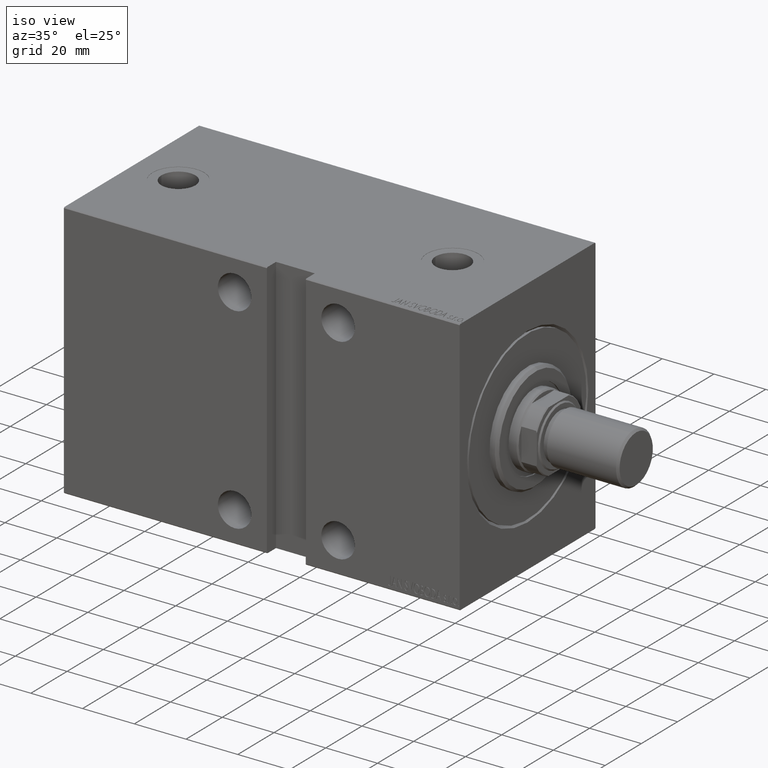
[diagram: clean part render]
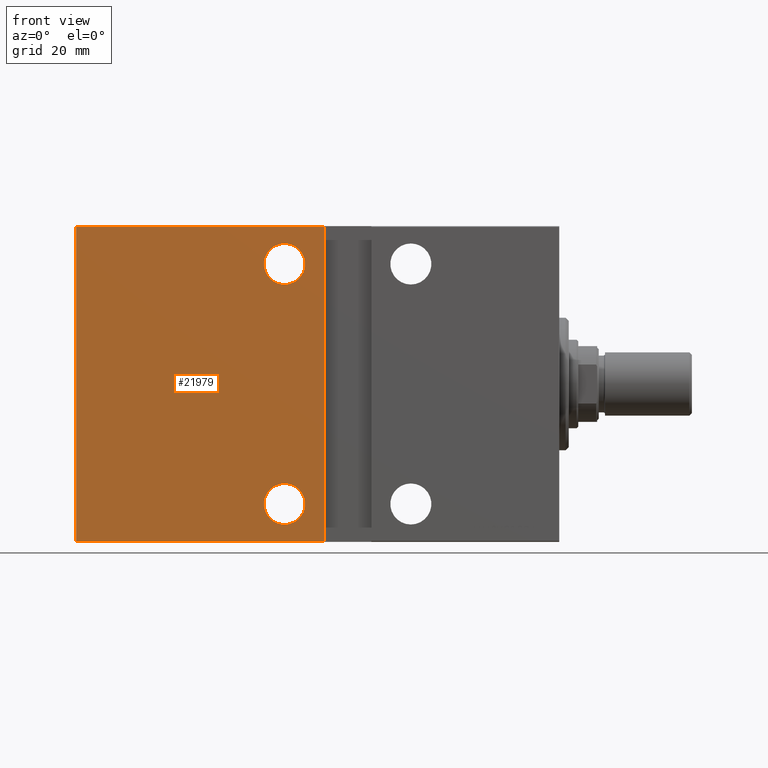
[diagram: tour spotlight — one face highlighted and labeled with its STEP entity id]
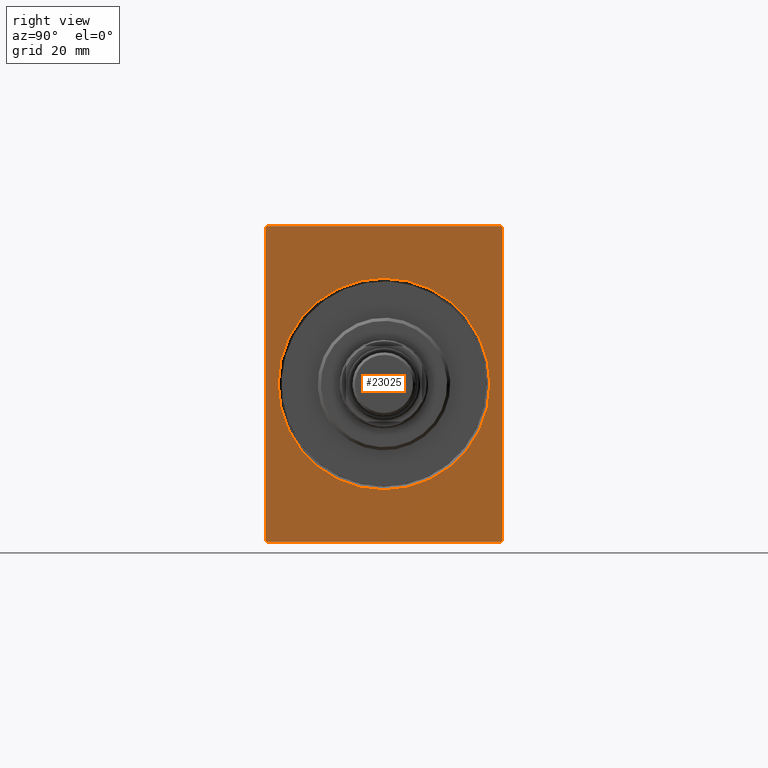
[diagram: tour spotlight — one face highlighted and labeled with its STEP entity id]
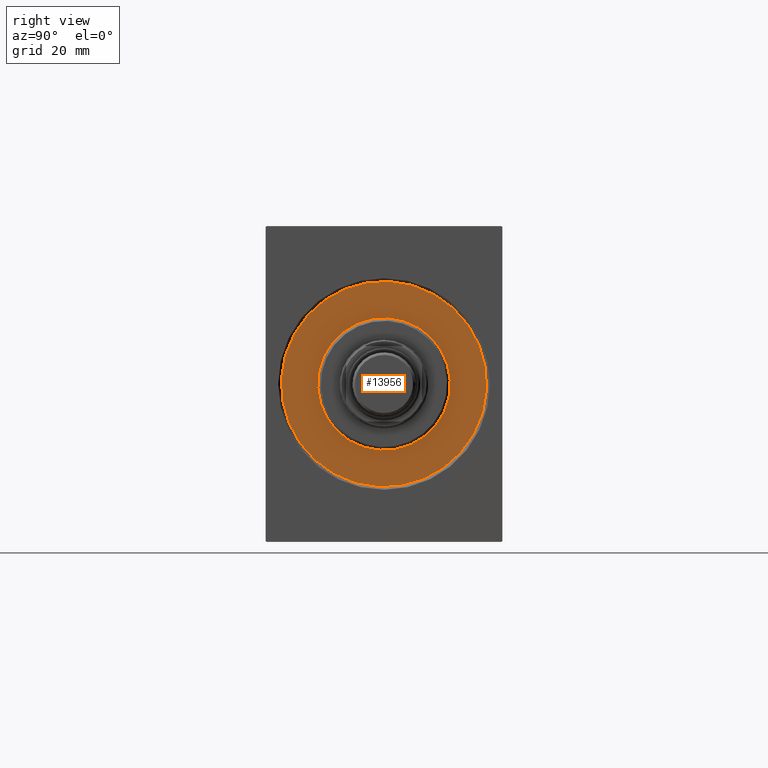
[diagram: tour spotlight — one face highlighted and labeled with its STEP entity id]
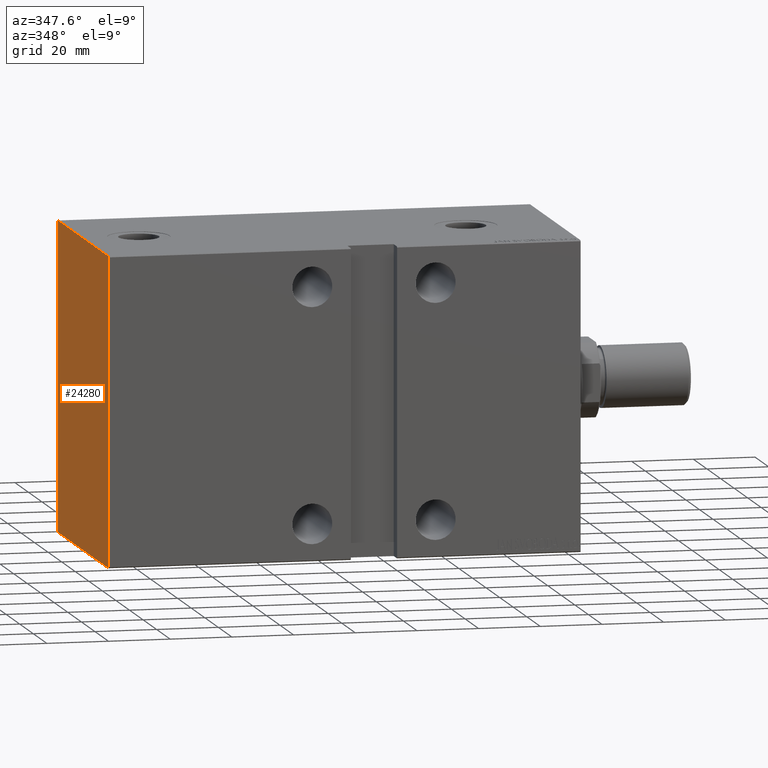
[diagram: tour spotlight — one face highlighted and labeled with its STEP entity id]
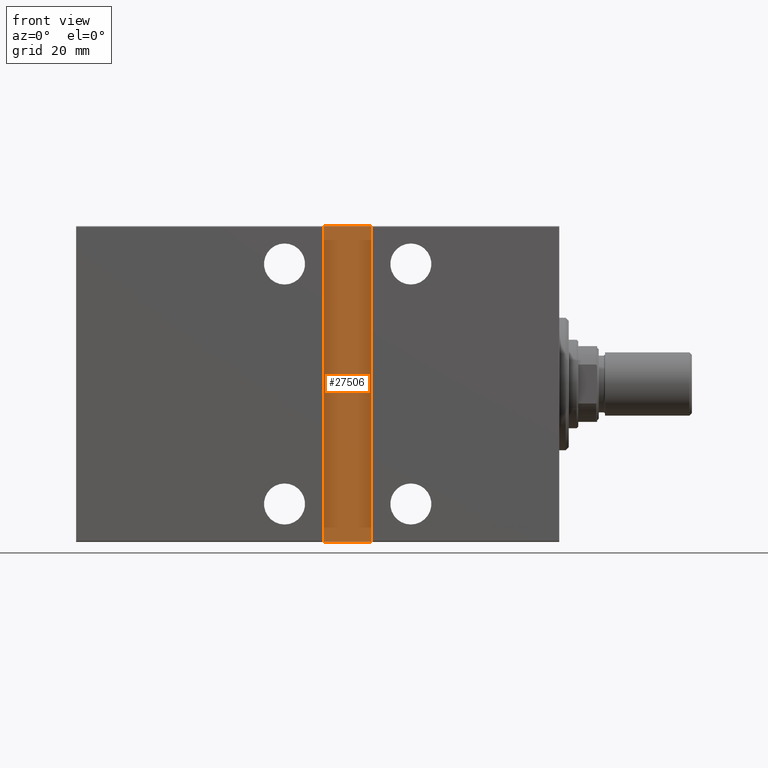
[diagram: tour spotlight — one face highlighted and labeled with its STEP entity id]
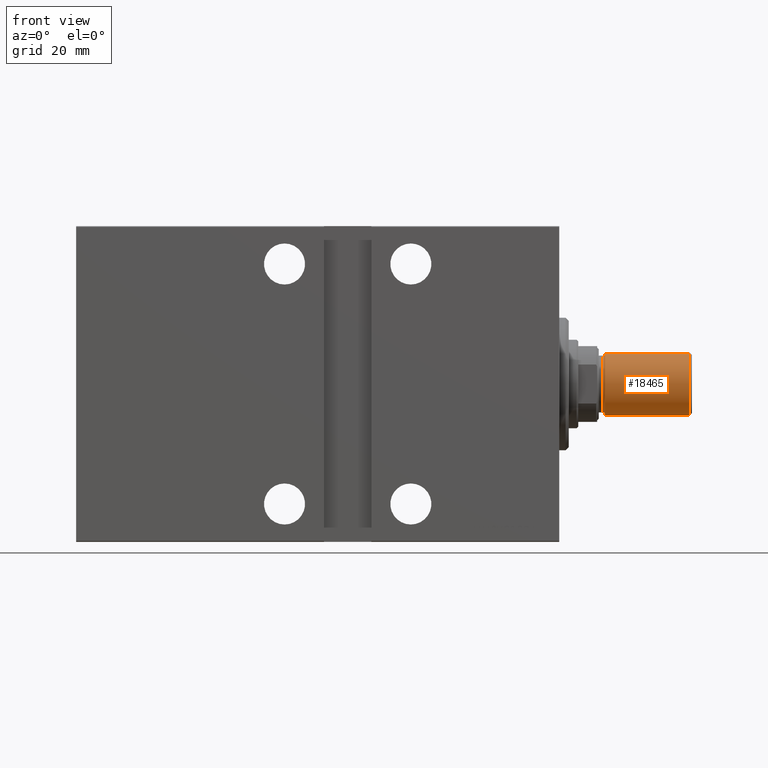
[diagram: tour spotlight — one face highlighted and labeled with its STEP entity id]
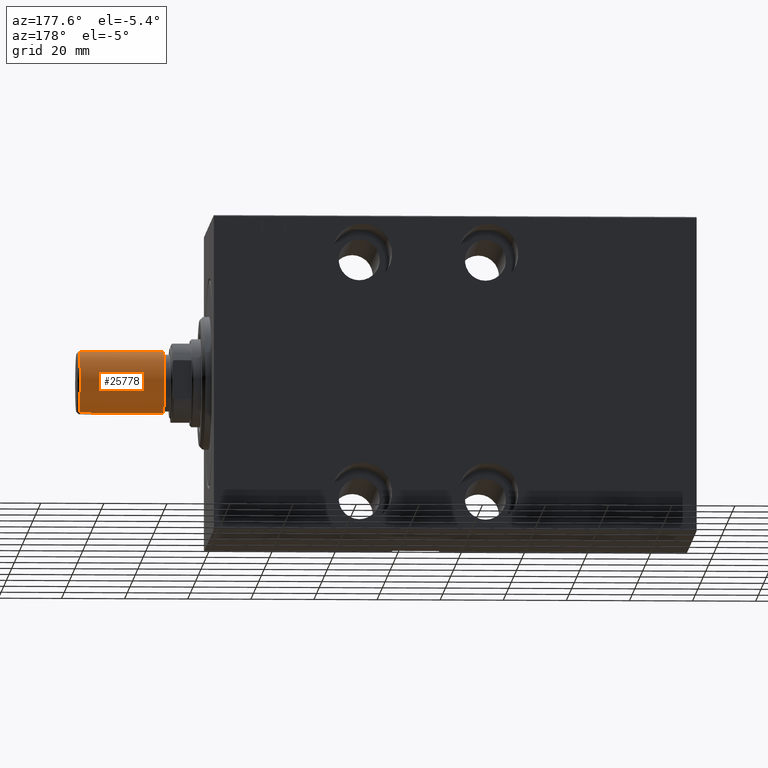
[diagram: tour spotlight — one face highlighted and labeled with its STEP entity id]
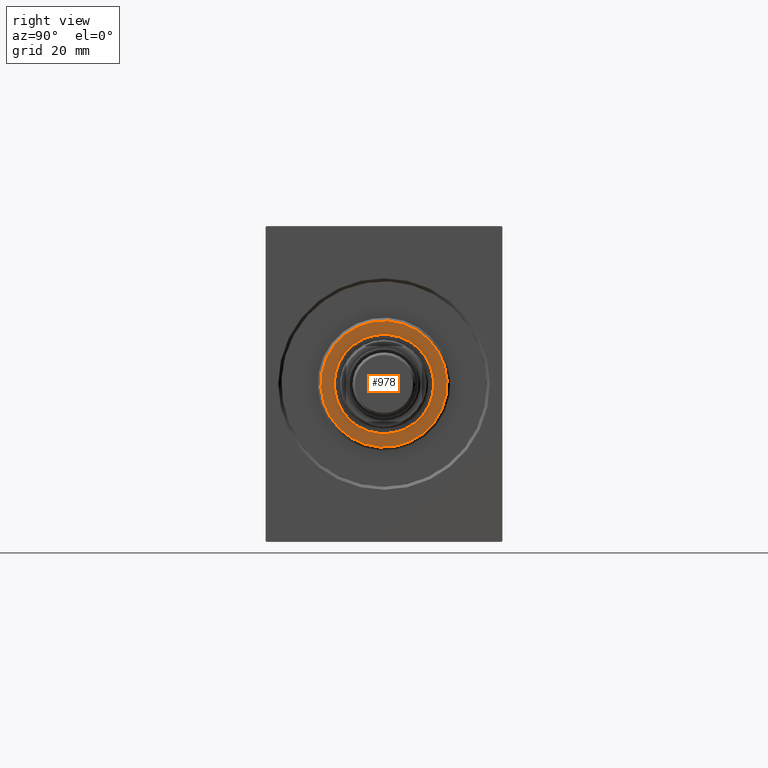
[diagram: tour spotlight — one face highlighted and labeled with its STEP entity id]
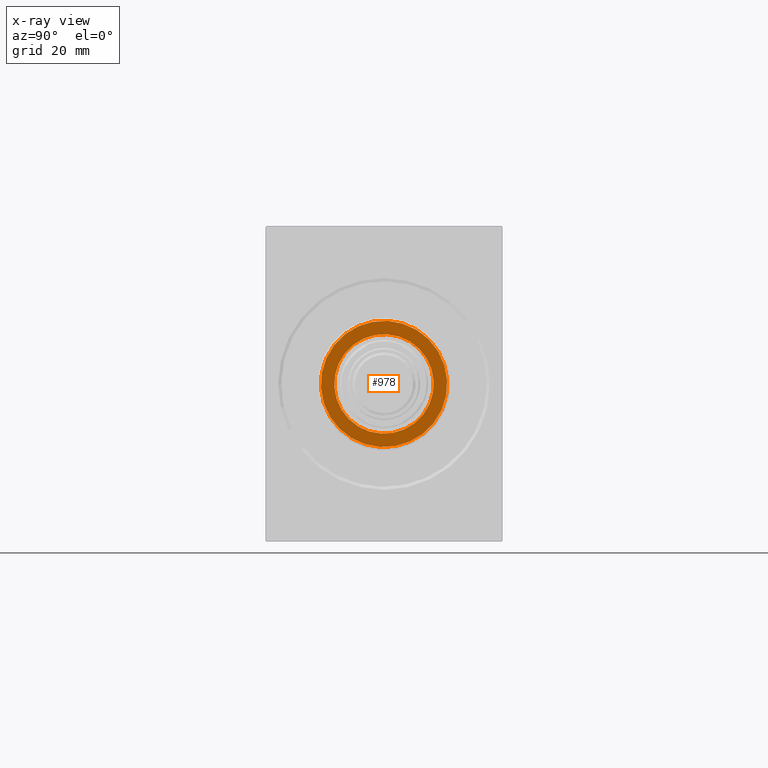
[diagram: x-ray of the same camera — body ghosted, this tour face saturated]
A machine part: a face-by-face anatomy tour. The part has 908 B-rep faces; the first image is the clean iso view, then the 8 largest visible faces are spotlighted one at a time (largest first), each with its STEP entity span.

Face 1 — front view, entity #21979. In plain terms, the highlighted planar face has unit normal (-0, 1, -0).
Definition (entity closure, byte-faithful):
#240 = EDGE_LOOP ( 'NONE', ( #21825, #43756 ) ) ;
#302 = EDGE_LOOP ( 'NONE', ( #7756, #40210, #27825, #15398 ) ) ;
#422 = CIRCLE ( 'NONE', #6183, 6.500000000000005329 ) ;
#1182 = DIRECTION ( 'NONE',  ( 0.000000000000000000, 1.000000000000000000, 0.000000000000000000 ) ) ;
#2494 = CARTESIAN_POINT ( 'NONE',  ( 153.0000000000000000, 37.50000000000002132, -49.69999999999998153 ) ) ;
#2772 = CARTESIAN_POINT ( 'NONE',  ( 87.00000000000000000, 37.50000000000004263, -44.50000000000000000 ) ) ;
#3158 = CARTESIAN_POINT ( 'NONE',  ( 87.00000000000000000, 37.50000000000004263, 38.00000000000000711 ) ) ;
#4649 = CARTESIAN_POINT ( 'NONE',  ( 153.0000000000000000, 37.50000000000002132, -49.69999999999998153 ) ) ;
#5159 = VECTOR ( 'NONE', #18539, 1000.000000000000000 ) ;
#5328 = CARTESIAN_POINT ( 'NONE',  ( 153.0000000000000000, 37.50000000000000711, 49.70000000000003837 ) ) ;
#6081 = AXIS2_PLACEMENT_3D ( 'NONE', #11276, #1182, #7476 ) ;
#6183 = AXIS2_PLACEMENT_3D ( 'NONE', #3158, #33437, #27146 ) ;
#6376 = EDGE_CURVE ( 'NONE', #25930, #39518, #28260, .T. ) ;
#7476 = DIRECTION ( 'NONE',  ( 0.000000000000000000, 0.000000000000000000, 1.000000000000000000 ) ) ;
#7526 = PLANE ( 'NONE',  #38827 ) ;
#7756 = ORIENTED_EDGE ( 'NONE', *, *, #20656, .F. ) ;
#8010 = LINE ( 'NONE', #4649, #18794 ) ;
#9031 = CARTESIAN_POINT ( 'NONE',  ( 87.00000000000000000, 37.50000000000004263, 31.50000000000000000 ) ) ;
#9766 = DIRECTION ( 'NONE',  ( 0.000000000000000000, 1.000000000000000000, 0.000000000000000000 ) ) ;
#10014 = CARTESIAN_POINT ( 'NONE',  ( 153.0000000000000000, 37.50000000000000711, 49.70000000000003837 ) ) ;
#10408 = CARTESIAN_POINT ( 'NONE',  ( 87.00000000000000000, 37.50000000000004263, -37.99999999999999289 ) ) ;
#10442 = DIRECTION ( 'NONE',  ( 0.000000000000000000, -1.000000000000000000, -1.387778780781445676E-16 ) ) ;
#11208 = VERTEX_POINT ( 'NONE', #41149 ) ;
#11263 = CIRCLE ( 'NONE', #27068, 6.500000000000005329 ) ;
#11276 = CARTESIAN_POINT ( 'NONE',  ( 87.00000000000000000, 37.50000000000004263, 38.00000000000000711 ) ) ;
#11642 = VECTOR ( 'NONE', #35385, 1000.000000000000000 ) ;
#14111 = LINE ( 'NONE', #38531, #11642 ) ;
#14250 = FACE_OUTER_BOUND ( 'NONE', #302, .T. ) ;
#15398 = ORIENTED_EDGE ( 'NONE', *, *, #38898, .T. ) ;
#17501 = ORIENTED_EDGE ( 'NONE', *, *, #42956, .F. ) ;
#18539 = DIRECTION ( 'NONE',  ( 0.000000000000000000, -1.387778780781445676E-16, 1.000000000000000000 ) ) ;
#18794 = VECTOR ( 'NONE', #31998, 1000.000000000000000 ) ;
#19238 = CARTESIAN_POINT ( 'NONE',  ( 87.00000000000000000, 37.50000000000004263, -37.99999999999999289 ) ) ;
#20004 = VERTEX_POINT ( 'NONE', #34371 ) ;
#20081 = CARTESIAN_POINT ( 'NONE',  ( 87.00000000000000000, 37.50000000000004263, 44.50000000000001421 ) ) ;
#20656 = EDGE_CURVE ( 'NONE', #26322, #41788, #39170, .T. ) ;
#21199 = DIRECTION ( 'NONE',  ( 0.000000000000000000, 1.387778780781445676E-16, -1.000000000000000000 ) ) ;
#21749 = EDGE_CURVE ( 'NONE', #26322, #11208, #8010, .T. ) ;
#21825 = ORIENTED_EDGE ( 'NONE', *, *, #6376, .F. ) ;
#21979 = ADVANCED_FACE ( 'NONE', ( #38229, #31502, #14250 ), #7526, .F. ) ;
#22834 = DIRECTION ( 'NONE',  ( 0.000000000000000000, 0.000000000000000000, 1.000000000000000000 ) ) ;
#22850 = AXIS2_PLACEMENT_3D ( 'NONE', #10408, #9766, #26799 ) ;
#22876 = EDGE_CURVE ( 'NONE', #41608, #11208, #14111, .T. ) ;
#23554 = CIRCLE ( 'NONE', #22850, 6.500000000000005329 ) ;
#25930 = VERTEX_POINT ( 'NONE', #20081 ) ;
#26126 = VERTEX_POINT ( 'NONE', #2772 ) ;
#26322 = VERTEX_POINT ( 'NONE', #2494 ) ;
#26799 = DIRECTION ( 'NONE',  ( 0.000000000000000000, 0.000000000000000000, 1.000000000000000000 ) ) ;
#27068 = AXIS2_PLACEMENT_3D ( 'NONE', #19238, #43446, #22834 ) ;
#27146 = DIRECTION ( 'NONE',  ( 0.000000000000000000, 0.000000000000000000, 1.000000000000000000 ) ) ;
#27825 = ORIENTED_EDGE ( 'NONE', *, *, #22876, .F. ) ;
#28260 = CIRCLE ( 'NONE', #6081, 6.500000000000005329 ) ;
#28897 = EDGE_LOOP ( 'NONE', ( #17501, #43414 ) ) ;
#30197 = LINE ( 'NONE', #10014, #39909 ) ;
#31502 = FACE_BOUND ( 'NONE', #240, .T. ) ;
#31998 = DIRECTION ( 'NONE',  ( -1.000000000000000000, 0.000000000000000000, 0.000000000000000000 ) ) ;
#32268 = EDGE_CURVE ( 'NONE', #39518, #25930, #422, .T. ) ;
#33412 = CARTESIAN_POINT ( 'NONE',  ( 74.50000000000002842, 37.50000000000001421, 49.70000000000003837 ) ) ;
#33437 = DIRECTION ( 'NONE',  ( 0.000000000000000000, 1.000000000000000000, 0.000000000000000000 ) ) ;
#34001 = DIRECTION ( 'NONE',  ( 1.000000000000000000, 0.000000000000000000, 0.000000000000000000 ) ) ;
#34371 = CARTESIAN_POINT ( 'NONE',  ( 87.00000000000000000, 37.50000000000004263, -31.49999999999998579 ) ) ;
#35385 = DIRECTION ( 'NONE',  ( -1.387778780781445676E-16, 0.000000000000000000, -1.000000000000000000 ) ) ;
#35807 = CARTESIAN_POINT ( 'NONE',  ( 153.0000000000000000, 37.50000000000002132, -50.00000000000000000 ) ) ;
#38229 = FACE_BOUND ( 'NONE', #28897, .T. ) ;
#38531 = CARTESIAN_POINT ( 'NONE',  ( 74.50000000000002842, 37.50000000000001421, 50.00000000000000000 ) ) ;
#38827 = AXIS2_PLACEMENT_3D ( 'NONE', #41600, #10442, #21199 ) ;
#38898 = EDGE_CURVE ( 'NONE', #41608, #41788, #30197, .T. ) ;
#39170 = LINE ( 'NONE', #35807, #5159 ) ;
#39518 = VERTEX_POINT ( 'NONE', #9031 ) ;
#39795 = EDGE_CURVE ( 'NONE', #26126, #20004, #11263, .T. ) ;
#39909 = VECTOR ( 'NONE', #34001, 1000.000000000000000 ) ;
#40210 = ORIENTED_EDGE ( 'NONE', *, *, #21749, .T. ) ;
#41149 = CARTESIAN_POINT ( 'NONE',  ( 74.50000000000001421, 37.50000000000001421, -49.69999999999998153 ) ) ;
#41600 = CARTESIAN_POINT ( 'NONE',  ( 153.0000000000000000, 37.50000000000002132, -50.00000000000000000 ) ) ;
#41608 = VERTEX_POINT ( 'NONE', #33412 ) ;
#41788 = VERTEX_POINT ( 'NONE', #5328 ) ;
#42956 = EDGE_CURVE ( 'NONE', #20004, #26126, #23554, .T. ) ;
#43414 = ORIENTED_EDGE ( 'NONE', *, *, #39795, .F. ) ;
#43446 = DIRECTION ( 'NONE',  ( 0.000000000000000000, 1.000000000000000000, 0.000000000000000000 ) ) ;
#43756 = ORIENTED_EDGE ( 'NONE', *, *, #32268, .F. ) ;

Face 2 — right view, entity #23025. In plain terms, the highlighted planar face has unit normal (-1, -0, 0).
Definition (entity closure, byte-faithful):
#1279 = ORIENTED_EDGE ( 'NONE', *, *, #38382, .T. ) ;
#1398 = EDGE_CURVE ( 'NONE', #17785, #41631, #31821, .T. ) ;
#1713 = CARTESIAN_POINT ( 'NONE',  ( 0.000000000000000000, -37.49999999999999289, -49.69999999999998153 ) ) ;
#4391 = DIRECTION ( 'NONE',  ( -0.000000000000000000, 0.7071067811865802133, -0.7071067811865149322 ) ) ;
#4535 = LINE ( 'NONE', #31442, #20604 ) ;
#4763 = DIRECTION ( 'NONE',  ( 0.000000000000000000, -1.387778780781445676E-16, 1.000000000000000000 ) ) ;
#5220 = ORIENTED_EDGE ( 'NONE', *, *, #13441, .T. ) ;
#5379 = EDGE_LOOP ( 'NONE', ( #5220, #27272 ) ) ;
#6276 = VECTOR ( 'NONE', #34700, 1000.000000000000114 ) ;
#6916 = LINE ( 'NONE', #34260, #24849 ) ;
#7393 = DIRECTION ( 'NONE',  ( 0.000000000000000000, 0.000000000000000000, -1.000000000000000000 ) ) ;
#7794 = EDGE_CURVE ( 'NONE', #25334, #27874, #15883, .T. ) ;
#8334 = VERTEX_POINT ( 'NONE', #24427 ) ;
#8870 = DIRECTION ( 'NONE',  ( 0.000000000000000000, 1.000000000000000000, 0.000000000000000000 ) ) ;
#10077 = CARTESIAN_POINT ( 'NONE',  ( 0.000000000000000000, 4.102566777143633774E-15, -33.50000000000000000 ) ) ;
#10286 = ORIENTED_EDGE ( 'NONE', *, *, #34219, .F. ) ;
#10462 = ORIENTED_EDGE ( 'NONE', *, *, #40874, .T. ) ;
#10707 = CARTESIAN_POINT ( 'NONE',  ( 0.000000000000000000, -37.19999999999996732, -50.00000000000000000 ) ) ;
#10894 = LINE ( 'NONE', #18059, #39875 ) ;
#10964 = DIRECTION ( 'NONE',  ( 1.000000000000000000, 0.000000000000000000, 0.000000000000000000 ) ) ;
#11450 = EDGE_LOOP ( 'NONE', ( #20783, #1279, #29018, #15792, #37728, #14968, #10286, #10462 ) ) ;
#11748 = CARTESIAN_POINT ( 'NONE',  ( 0.000000000000000000, -37.49999999999999289, 49.69999999999998153 ) ) ;
#11942 = DIRECTION ( 'NONE',  ( -0.000000000000000000, 0.7071067811865474617, 0.7071067811865474617 ) ) ;
#12448 = EDGE_CURVE ( 'NONE', #8334, #27496, #30681, .T. ) ;
#12653 = CARTESIAN_POINT ( 'NONE',  ( 0.000000000000000000, 37.20000000000000995, 50.00000000000000000 ) ) ;
#13441 = EDGE_CURVE ( 'NONE', #41631, #17785, #42026, .T. ) ;
#13682 = CARTESIAN_POINT ( 'NONE',  ( 0.000000000000000000, -37.19999999999996732, 50.00000000000000000 ) ) ;
#14332 = EDGE_CURVE ( 'NONE', #41016, #39466, #27212, .T. ) ;
#14487 = EDGE_CURVE ( 'NONE', #41016, #39022, #4535, .T. ) ;
#14968 = ORIENTED_EDGE ( 'NONE', *, *, #12448, .T. ) ;
#15792 = ORIENTED_EDGE ( 'NONE', *, *, #14332, .T. ) ;
#15807 = CARTESIAN_POINT ( 'NONE',  ( 0.000000000000000000, 0.000000000000000000, 0.000000000000000000 ) ) ;
#15883 = LINE ( 'NONE', #36053, #31149 ) ;
#15887 = FACE_BOUND ( 'NONE', #5379, .T. ) ;
#15998 = LINE ( 'NONE', #18899, #23500 ) ;
#17474 = CARTESIAN_POINT ( 'NONE',  ( 0.000000000000000000, 0.000000000000000000, 0.000000000000000000 ) ) ;
#17539 = CARTESIAN_POINT ( 'NONE',  ( 0.000000000000000000, 37.50000000000002132, -49.69999999999998153 ) ) ;
#17785 = VERTEX_POINT ( 'NONE', #10077 ) ;
#18059 = CARTESIAN_POINT ( 'NONE',  ( 0.000000000000000000, 37.20000000000000995, 50.00000000000000000 ) ) ;
#18882 = CARTESIAN_POINT ( 'NONE',  ( 0.000000000000000000, 37.19999999999999574, -50.00000000000000000 ) ) ;
#18899 = CARTESIAN_POINT ( 'NONE',  ( 0.000000000000000000, -37.49999999999999289, 49.69999999999998153 ) ) ;
#20604 = VECTOR ( 'NONE', #4763, 1000.000000000000000 ) ;
#20783 = ORIENTED_EDGE ( 'NONE', *, *, #7794, .F. ) ;
#21015 = DIRECTION ( 'NONE',  ( 0.000000000000000000, 0.000000000000000000, -1.000000000000000000 ) ) ;
#22161 = DIRECTION ( 'NONE',  ( 1.000000000000000000, 0.000000000000000000, 0.000000000000000000 ) ) ;
#22383 = FACE_OUTER_BOUND ( 'NONE', #11450, .T. ) ;
#23025 = ADVANCED_FACE ( 'NONE', ( #15887, #22383 ), #32927, .F. ) ;
#23500 = VECTOR ( 'NONE', #11942, 1000.000000000000114 ) ;
#24198 = VECTOR ( 'NONE', #37297, 1000.000000000000114 ) ;
#24427 = CARTESIAN_POINT ( 'NONE',  ( 0.000000000000000000, -37.19999999999996732, -50.00000000000000000 ) ) ;
#24849 = VECTOR ( 'NONE', #21015, 1000.000000000000000 ) ;
#25334 = VERTEX_POINT ( 'NONE', #12653 ) ;
#25456 = CARTESIAN_POINT ( 'NONE',  ( 0.000000000000000000, -37.49999999999999289, -50.00000000000000000 ) ) ;
#27212 = LINE ( 'NONE', #17539, #24198 ) ;
#27272 = ORIENTED_EDGE ( 'NONE', *, *, #1398, .T. ) ;
#27496 = VERTEX_POINT ( 'NONE', #1713 ) ;
#27874 = VERTEX_POINT ( 'NONE', #13682 ) ;
#28419 = AXIS2_PLACEMENT_3D ( 'NONE', #15807, #33289, #29477 ) ;
#29018 = ORIENTED_EDGE ( 'NONE', *, *, #14487, .F. ) ;
#29335 = CARTESIAN_POINT ( 'NONE',  ( 0.000000000000000000, 0.000000000000000000, 0.000000000000000000 ) ) ;
#29477 = DIRECTION ( 'NONE',  ( 0.000000000000000000, 0.000000000000000000, -1.000000000000000000 ) ) ;
#29729 = LINE ( 'NONE', #25456, #35471 ) ;
#29782 = DIRECTION ( 'NONE',  ( 0.000000000000000000, -1.000000000000000000, 0.000000000000000000 ) ) ;
#30681 = LINE ( 'NONE', #10707, #6276 ) ;
#30863 = EDGE_CURVE ( 'NONE', #8334, #39466, #29729, .T. ) ;
#31149 = VECTOR ( 'NONE', #29782, 1000.000000000000000 ) ;
#31442 = CARTESIAN_POINT ( 'NONE',  ( 0.000000000000000000, 37.50000000000002132, -50.00000000000000000 ) ) ;
#31726 = CARTESIAN_POINT ( 'NONE',  ( 0.000000000000000000, 37.50000000000000711, 49.70000000000003837 ) ) ;
#31821 = CIRCLE ( 'NONE', #40420, 33.50000000000000000 ) ;
#32245 = DIRECTION ( 'NONE',  ( 0.000000000000000000, 0.000000000000000000, -1.000000000000000000 ) ) ;
#32927 = PLANE ( 'NONE',  #35279 ) ;
#33289 = DIRECTION ( 'NONE',  ( 1.000000000000000000, 0.000000000000000000, 0.000000000000000000 ) ) ;
#34219 = EDGE_CURVE ( 'NONE', #43967, #27496, #6916, .T. ) ;
#34260 = CARTESIAN_POINT ( 'NONE',  ( 0.000000000000000000, -37.49999999999999289, 50.00000000000000000 ) ) ;
#34700 = DIRECTION ( 'NONE',  ( -0.000000000000000000, -0.7071067811865474617, 0.7071067811865474617 ) ) ;
#35279 = AXIS2_PLACEMENT_3D ( 'NONE', #29335, #22161, #32245 ) ;
#35471 = VECTOR ( 'NONE', #8870, 1000.000000000000000 ) ;
#36053 = CARTESIAN_POINT ( 'NONE',  ( 0.000000000000000000, 37.50000000000000711, 50.00000000000000000 ) ) ;
#37297 = DIRECTION ( 'NONE',  ( 0.000000000000000000, -0.7071067811865474617, -0.7071067811865474617 ) ) ;
#37728 = ORIENTED_EDGE ( 'NONE', *, *, #30863, .F. ) ;
#38382 = EDGE_CURVE ( 'NONE', #25334, #39022, #10894, .T. ) ;
#39022 = VERTEX_POINT ( 'NONE', #31726 ) ;
#39466 = VERTEX_POINT ( 'NONE', #18882 ) ;
#39875 = VECTOR ( 'NONE', #4391, 999.9999999999998863 ) ;
#39993 = CARTESIAN_POINT ( 'NONE',  ( 0.000000000000000000, 37.50000000000002132, -49.69999999999998153 ) ) ;
#40420 = AXIS2_PLACEMENT_3D ( 'NONE', #17474, #10964, #7393 ) ;
#40874 = EDGE_CURVE ( 'NONE', #43967, #27874, #15998, .T. ) ;
#41016 = VERTEX_POINT ( 'NONE', #39993 ) ;
#41631 = VERTEX_POINT ( 'NONE', #43718 ) ;
#42026 = CIRCLE ( 'NONE', #28419, 33.50000000000000000 ) ;
#43718 = CARTESIAN_POINT ( 'NONE',  ( 0.000000000000000000, 0.000000000000000000, 33.50000000000000000 ) ) ;
#43967 = VERTEX_POINT ( 'NONE', #11748 ) ;

Face 3 — right view, entity #13956. In plain terms, the highlighted planar face has unit normal (-1, 0, 0).
Definition (entity closure, byte-faithful):
#726 = DIRECTION ( 'NONE',  ( -1.000000000000000000, 0.000000000000000000, 0.000000000000000000 ) ) ;
#1541 = CARTESIAN_POINT ( 'NONE',  ( 0.000000000000000000, 3.980102097228898626E-15, 32.50000000000000000 ) ) ;
#1867 = AXIS2_PLACEMENT_3D ( 'NONE', #24503, #726, #28078 ) ;
#2640 = CARTESIAN_POINT ( 'NONE',  ( 0.000000000000000000, 0.000000000000000000, 0.000000000000000000 ) ) ;
#5998 = FACE_OUTER_BOUND ( 'NONE', #8192, .T. ) ;
#6439 = DIRECTION ( 'NONE',  ( 0.000000000000000000, 0.000000000000000000, 1.000000000000000000 ) ) ;
#6649 = CARTESIAN_POINT ( 'NONE',  ( 0.000000000000000000, 2.571758278209441661E-15, -21.00000000000000000 ) ) ;
#8192 = EDGE_LOOP ( 'NONE', ( #40145, #38602 ) ) ;
#12181 = VERTEX_POINT ( 'NONE', #1541 ) ;
#13956 = ADVANCED_FACE ( 'NONE', ( #33779, #5998 ), #19672, .F. ) ;
#14004 = CARTESIAN_POINT ( 'NONE',  ( 0.000000000000000000, 0.000000000000000000, 21.00000000000000000 ) ) ;
#14917 = AXIS2_PLACEMENT_3D ( 'NONE', #15939, #29613, #26247 ) ;
#15939 = CARTESIAN_POINT ( 'NONE',  ( 0.000000000000000000, 0.000000000000000000, 0.000000000000000000 ) ) ;
#16318 = DIRECTION ( 'NONE',  ( -1.000000000000000000, 0.000000000000000000, 0.000000000000000000 ) ) ;
#17014 = CIRCLE ( 'NONE', #41326, 21.00000000000000000 ) ;
#17048 = DIRECTION ( 'NONE',  ( 0.000000000000000000, 0.000000000000000000, -1.000000000000000000 ) ) ;
#19672 = PLANE ( 'NONE',  #23502 ) ;
#20145 = EDGE_LOOP ( 'NONE', ( #37358, #27335 ) ) ;
#20418 = DIRECTION ( 'NONE',  ( 1.000000000000000000, -0.000000000000000000, 0.000000000000000000 ) ) ;
#21923 = VERTEX_POINT ( 'NONE', #6649 ) ;
#23502 = AXIS2_PLACEMENT_3D ( 'NONE', #2640, #16318, #6439 ) ;
#23782 = CARTESIAN_POINT ( 'NONE',  ( 0.000000000000000000, 0.000000000000000000, 0.000000000000000000 ) ) ;
#24503 = CARTESIAN_POINT ( 'NONE',  ( 0.000000000000000000, 0.000000000000000000, 0.000000000000000000 ) ) ;
#26247 = DIRECTION ( 'NONE',  ( 0.000000000000000000, 0.000000000000000000, 1.000000000000000000 ) ) ;
#26970 = CARTESIAN_POINT ( 'NONE',  ( 0.000000000000000000, 0.000000000000000000, -32.50000000000000000 ) ) ;
#27335 = ORIENTED_EDGE ( 'NONE', *, *, #38723, .F. ) ;
#28078 = DIRECTION ( 'NONE',  ( 0.000000000000000000, 0.000000000000000000, 1.000000000000000000 ) ) ;
#28320 = CIRCLE ( 'NONE', #1867, 32.50000000000000000 ) ;
#29545 = VERTEX_POINT ( 'NONE', #26970 ) ;
#29613 = DIRECTION ( 'NONE',  ( -1.000000000000000000, 0.000000000000000000, 0.000000000000000000 ) ) ;
#30094 = VERTEX_POINT ( 'NONE', #14004 ) ;
#31213 = CIRCLE ( 'NONE', #42661, 21.00000000000000000 ) ;
#32305 = EDGE_CURVE ( 'NONE', #30094, #21923, #31213, .T. ) ;
#33420 = CARTESIAN_POINT ( 'NONE',  ( 0.000000000000000000, 0.000000000000000000, 0.000000000000000000 ) ) ;
#33779 = FACE_BOUND ( 'NONE', #20145, .T. ) ;
#34266 = CIRCLE ( 'NONE', #14917, 32.50000000000000000 ) ;
#35718 = EDGE_CURVE ( 'NONE', #29545, #12181, #28320, .T. ) ;
#37358 = ORIENTED_EDGE ( 'NONE', *, *, #32305, .F. ) ;
#38602 = ORIENTED_EDGE ( 'NONE', *, *, #41401, .F. ) ;
#38723 = EDGE_CURVE ( 'NONE', #21923, #30094, #17014, .T. ) ;
#39699 = DIRECTION ( 'NONE',  ( 0.000000000000000000, 0.000000000000000000, -1.000000000000000000 ) ) ;
#40145 = ORIENTED_EDGE ( 'NONE', *, *, #35718, .F. ) ;
#41326 = AXIS2_PLACEMENT_3D ( 'NONE', #33420, #43281, #39699 ) ;
#41401 = EDGE_CURVE ( 'NONE', #12181, #29545, #34266, .T. ) ;
#42661 = AXIS2_PLACEMENT_3D ( 'NONE', #23782, #20418, #17048 ) ;
#43281 = DIRECTION ( 'NONE',  ( 1.000000000000000000, -0.000000000000000000, 0.000000000000000000 ) ) ;

Face 4 — auxiliary view, entity #24280. In plain terms, the highlighted planar face has unit normal (-1, -0, 0).
Definition (entity closure, byte-faithful):
#1465 = EDGE_CURVE ( 'NONE', #16275, #7485, #26205, .T. ) ;
#1738 = VERTEX_POINT ( 'NONE', #32205 ) ;
#2046 = CARTESIAN_POINT ( 'NONE',  ( 153.0000000000000000, -37.19999999999996732, 50.00000000000000000 ) ) ;
#2494 = CARTESIAN_POINT ( 'NONE',  ( 153.0000000000000000, 37.50000000000002132, -49.69999999999998153 ) ) ;
#2882 = CARTESIAN_POINT ( 'NONE',  ( 153.0000000000000000, -43.59999999999998721, -43.59999999999998721 ) ) ;
#2969 = CARTESIAN_POINT ( 'NONE',  ( 153.0000000000000000, -37.19999999999996732, -50.00000000000000000 ) ) ;
#3765 = DIRECTION ( 'NONE',  ( 0.000000000000000000, 0.000000000000000000, -1.000000000000000000 ) ) ;
#3911 = LINE ( 'NONE', #13778, #31840 ) ;
#4911 = CARTESIAN_POINT ( 'NONE',  ( 153.0000000000000000, -37.49999999999999289, 50.00000000000000000 ) ) ;
#5159 = VECTOR ( 'NONE', #18539, 1000.000000000000000 ) ;
#5263 = AXIS2_PLACEMENT_3D ( 'NONE', #24178, #41847, #3765 ) ;
#5328 = CARTESIAN_POINT ( 'NONE',  ( 153.0000000000000000, 37.50000000000000711, 49.70000000000003837 ) ) ;
#6315 = ORIENTED_EDGE ( 'NONE', *, *, #38985, .T. ) ;
#7485 = VERTEX_POINT ( 'NONE', #2046 ) ;
#7992 = PLANE ( 'NONE',  #5263 ) ;
#8996 = ORIENTED_EDGE ( 'NONE', *, *, #40083, .T. ) ;
#9869 = VECTOR ( 'NONE', #9968, 1000.000000000000000 ) ;
#9968 = DIRECTION ( 'NONE',  ( 0.000000000000000000, 1.000000000000000000, 0.000000000000000000 ) ) ;
#10222 = VECTOR ( 'NONE', #26193, 1000.000000000000114 ) ;
#10827 = VERTEX_POINT ( 'NONE', #36479 ) ;
#10881 = CARTESIAN_POINT ( 'NONE',  ( 153.0000000000000000, 43.59999999999828901, 43.60000000000231779 ) ) ;
#12288 = DIRECTION ( 'NONE',  ( 0.000000000000000000, 0.000000000000000000, -1.000000000000000000 ) ) ;
#13778 = CARTESIAN_POINT ( 'NONE',  ( 153.0000000000000000, -43.59999999999998721, 43.59999999999998721 ) ) ;
#14126 = VECTOR ( 'NONE', #42040, 999.9999999999998863 ) ;
#16275 = VERTEX_POINT ( 'NONE', #19346 ) ;
#18539 = DIRECTION ( 'NONE',  ( 0.000000000000000000, -1.387778780781445676E-16, 1.000000000000000000 ) ) ;
#18797 = LINE ( 'NONE', #4911, #39813 ) ;
#19254 = LINE ( 'NONE', #36058, #10222 ) ;
#19346 = CARTESIAN_POINT ( 'NONE',  ( 153.0000000000000000, 37.20000000000000995, 50.00000000000000000 ) ) ;
#19767 = ORIENTED_EDGE ( 'NONE', *, *, #42637, .T. ) ;
#20656 = EDGE_CURVE ( 'NONE', #26322, #41788, #39170, .T. ) ;
#22142 = ORIENTED_EDGE ( 'NONE', *, *, #22990, .T. ) ;
#22863 = DIRECTION ( 'NONE',  ( 0.000000000000000000, -1.000000000000000000, 0.000000000000000000 ) ) ;
#22990 = EDGE_CURVE ( 'NONE', #1738, #26322, #19254, .T. ) ;
#23609 = CARTESIAN_POINT ( 'NONE',  ( 153.0000000000000000, -37.49999999999999289, 49.69999999999998153 ) ) ;
#23668 = DIRECTION ( 'NONE',  ( 0.000000000000000000, -0.7071067811865474617, -0.7071067811865474617 ) ) ;
#24178 = CARTESIAN_POINT ( 'NONE',  ( 153.0000000000000000, 0.000000000000000000, 0.000000000000000000 ) ) ;
#24280 = ADVANCED_FACE ( 'NONE', ( #38703 ), #7992, .T. ) ;
#26193 = DIRECTION ( 'NONE',  ( -0.000000000000000000, 0.7071067811865474617, 0.7071067811865474617 ) ) ;
#26205 = LINE ( 'NONE', #42791, #31126 ) ;
#26322 = VERTEX_POINT ( 'NONE', #2494 ) ;
#28866 = VERTEX_POINT ( 'NONE', #23609 ) ;
#29332 = EDGE_CURVE ( 'NONE', #7485, #28866, #3911, .T. ) ;
#29997 = EDGE_CURVE ( 'NONE', #28866, #10827, #18797, .T. ) ;
#30466 = EDGE_LOOP ( 'NONE', ( #8996, #22142, #34358, #6315, #39689, #36500, #36827, #19767 ) ) ;
#31126 = VECTOR ( 'NONE', #22863, 1000.000000000000000 ) ;
#31840 = VECTOR ( 'NONE', #23668, 1000.000000000000114 ) ;
#32205 = CARTESIAN_POINT ( 'NONE',  ( 153.0000000000000000, 37.19999999999999574, -50.00000000000000000 ) ) ;
#34358 = ORIENTED_EDGE ( 'NONE', *, *, #20656, .T. ) ;
#35807 = CARTESIAN_POINT ( 'NONE',  ( 153.0000000000000000, 37.50000000000002132, -50.00000000000000000 ) ) ;
#36058 = CARTESIAN_POINT ( 'NONE',  ( 153.0000000000000000, 43.60000000000000142, -43.60000000000000142 ) ) ;
#36479 = CARTESIAN_POINT ( 'NONE',  ( 153.0000000000000000, -37.49999999999999289, -49.69999999999998153 ) ) ;
#36500 = ORIENTED_EDGE ( 'NONE', *, *, #29332, .T. ) ;
#36671 = LINE ( 'NONE', #40690, #9869 ) ;
#36827 = ORIENTED_EDGE ( 'NONE', *, *, #29997, .T. ) ;
#37798 = VERTEX_POINT ( 'NONE', #2969 ) ;
#38674 = LINE ( 'NONE', #10881, #14126 ) ;
#38703 = FACE_OUTER_BOUND ( 'NONE', #30466, .T. ) ;
#38985 = EDGE_CURVE ( 'NONE', #41788, #16275, #38674, .T. ) ;
#39170 = LINE ( 'NONE', #35807, #5159 ) ;
#39689 = ORIENTED_EDGE ( 'NONE', *, *, #1465, .T. ) ;
#39813 = VECTOR ( 'NONE', #12288, 1000.000000000000000 ) ;
#40083 = EDGE_CURVE ( 'NONE', #37798, #1738, #36671, .T. ) ;
#40690 = CARTESIAN_POINT ( 'NONE',  ( 153.0000000000000000, -37.49999999999999289, -50.00000000000000000 ) ) ;
#41788 = VERTEX_POINT ( 'NONE', #5328 ) ;
#41847 = DIRECTION ( 'NONE',  ( 1.000000000000000000, 0.000000000000000000, 0.000000000000000000 ) ) ;
#42040 = DIRECTION ( 'NONE',  ( -0.000000000000000000, -0.7071067811865802133, 0.7071067811865149322 ) ) ;
#42140 = VECTOR ( 'NONE', #42995, 1000.000000000000114 ) ;
#42637 = EDGE_CURVE ( 'NONE', #10827, #37798, #43677, .T. ) ;
#42791 = CARTESIAN_POINT ( 'NONE',  ( 153.0000000000000000, 37.50000000000000711, 50.00000000000000000 ) ) ;
#42995 = DIRECTION ( 'NONE',  ( -0.000000000000000000, 0.7071067811865474617, -0.7071067811865474617 ) ) ;
#43677 = LINE ( 'NONE', #2882, #42140 ) ;

Face 5 — front view, entity #27506. In plain terms, the highlighted planar face has unit normal (0, -1, -0).
Definition (entity closure, byte-faithful):
#1783 = EDGE_LOOP ( 'NONE', ( #4340, #20743, #41781, #34850 ) ) ;
#1950 = DIRECTION ( 'NONE',  ( -0.000000000000000000, 1.000000000000000000, 0.000000000000000000 ) ) ;
#2047 = LINE ( 'NONE', #16388, #6969 ) ;
#4340 = ORIENTED_EDGE ( 'NONE', *, *, #19185, .F. ) ;
#4538 = CARTESIAN_POINT ( 'NONE',  ( 59.50000000000001421, 32.50000000000001421, 50.00000000000000000 ) ) ;
#4739 = CARTESIAN_POINT ( 'NONE',  ( 59.50000000000001421, 32.50000000000001421, 50.00000000000000000 ) ) ;
#5430 = VECTOR ( 'NONE', #18406, 1000.000000000000000 ) ;
#6072 = LINE ( 'NONE', #33422, #7030 ) ;
#6314 = VERTEX_POINT ( 'NONE', #20502 ) ;
#6969 = VECTOR ( 'NONE', #22437, 1000.000000000000000 ) ;
#7030 = VECTOR ( 'NONE', #30269, 1000.000000000000000 ) ;
#8571 = VERTEX_POINT ( 'NONE', #41676 ) ;
#8666 = PLANE ( 'NONE',  #26101 ) ;
#9406 = EDGE_CURVE ( 'NONE', #15361, #13931, #41946, .T. ) ;
#12916 = LINE ( 'NONE', #43419, #13010 ) ;
#13010 = VECTOR ( 'NONE', #33766, 1000.000000000000000 ) ;
#13931 = VERTEX_POINT ( 'NONE', #16958 ) ;
#15361 = VERTEX_POINT ( 'NONE', #4538 ) ;
#16388 = CARTESIAN_POINT ( 'NONE',  ( 74.50000000000002842, 32.50000000000001421, 50.00000000000000000 ) ) ;
#16958 = CARTESIAN_POINT ( 'NONE',  ( 74.50000000000002842, 32.50000000000001421, 50.00000000000000000 ) ) ;
#18406 = DIRECTION ( 'NONE',  ( 1.000000000000000000, 0.000000000000000000, 0.000000000000000000 ) ) ;
#19185 = EDGE_CURVE ( 'NONE', #8571, #6314, #12916, .T. ) ;
#20502 = CARTESIAN_POINT ( 'NONE',  ( 74.50000000000002842, 32.50000000000001421, -50.00000000000000000 ) ) ;
#20743 = ORIENTED_EDGE ( 'NONE', *, *, #41288, .F. ) ;
#22126 = FACE_OUTER_BOUND ( 'NONE', #1783, .T. ) ;
#22346 = CARTESIAN_POINT ( 'NONE',  ( 0.000000000000000000, 32.50000000000001421, 0.000000000000000000 ) ) ;
#22437 = DIRECTION ( 'NONE',  ( -1.387778780781445676E-16, 0.000000000000000000, -1.000000000000000000 ) ) ;
#26101 = AXIS2_PLACEMENT_3D ( 'NONE', #22346, #1950, #32210 ) ;
#27506 = ADVANCED_FACE ( 'NONE', ( #22126 ), #8666, .T. ) ;
#30269 = DIRECTION ( 'NONE',  ( -6.938893903907228378E-17, 0.000000000000000000, -1.000000000000000000 ) ) ;
#32210 = DIRECTION ( 'NONE',  ( 0.000000000000000000, -0.000000000000000000, 1.000000000000000000 ) ) ;
#33422 = CARTESIAN_POINT ( 'NONE',  ( 59.50000000000001421, 32.50000000000001421, 50.00000000000000000 ) ) ;
#33766 = DIRECTION ( 'NONE',  ( 1.000000000000000000, 0.000000000000000000, 0.000000000000000000 ) ) ;
#34850 = ORIENTED_EDGE ( 'NONE', *, *, #38685, .T. ) ;
#38685 = EDGE_CURVE ( 'NONE', #13931, #6314, #2047, .T. ) ;
#41288 = EDGE_CURVE ( 'NONE', #15361, #8571, #6072, .T. ) ;
#41676 = CARTESIAN_POINT ( 'NONE',  ( 59.50000000000000711, 32.50000000000001421, -50.00000000000000000 ) ) ;
#41781 = ORIENTED_EDGE ( 'NONE', *, *, #9406, .T. ) ;
#41946 = LINE ( 'NONE', #4739, #5430 ) ;
#43419 = CARTESIAN_POINT ( 'NONE',  ( 59.50000000000000711, 32.50000000000001421, -50.00000000000000000 ) ) ;

Face 6 — front view, entity #18465. In plain terms, the highlighted cylindrical surface (edge-blend (fillet) strip) has radius 10 mm, axis along (1, 0, -0).
Definition (entity closure, byte-faithful):
#1919 = EDGE_CURVE ( 'NONE', #41786, #25244, #27416, .T. ) ;
#2533 = VECTOR ( 'NONE', #30782, 1000.000000000000000 ) ;
#4084 = CYLINDRICAL_SURFACE ( 'NONE', #5856, 10.00000000000000000 ) ;
#4868 = CARTESIAN_POINT ( 'NONE',  ( 10.00000000000000000, 1.224646799147353256E-15, 0.7999999999999986011 ) ) ;
#5791 = LINE ( 'NONE', #19464, #20654 ) ;
#5856 = AXIS2_PLACEMENT_3D ( 'NONE', #31864, #17750, #31427 ) ;
#9583 = ORIENTED_EDGE ( 'NONE', *, *, #25318, .F. ) ;
#10934 = VERTEX_POINT ( 'NONE', #4868 ) ;
#12433 = AXIS2_PLACEMENT_3D ( 'NONE', #13312, #33724, #40235 ) ;
#13312 = CARTESIAN_POINT ( 'NONE',  ( 0.000000000000000000, 0.000000000000000000, 27.50000000000000000 ) ) ;
#14924 = CARTESIAN_POINT ( 'NONE',  ( 10.00000000000000000, 1.224646799147353256E-15, 27.50000000000000000 ) ) ;
#15503 = ORIENTED_EDGE ( 'NONE', *, *, #1919, .T. ) ;
#15667 = DIRECTION ( 'NONE',  ( 1.000000000000000000, 0.000000000000000000, 0.000000000000000000 ) ) ;
#16039 = CIRCLE ( 'NONE', #12433, 10.00000000000000000 ) ;
#17750 = DIRECTION ( 'NONE',  ( -0.000000000000000000, -0.000000000000000000, -1.000000000000000000 ) ) ;
#18465 = ADVANCED_FACE ( 'NONE', ( #34795 ), #4084, .T. ) ;
#19464 = CARTESIAN_POINT ( 'NONE',  ( 10.00000000000000000, 1.224646799147353256E-15, 27.50000000000000000 ) ) ;
#20654 = VECTOR ( 'NONE', #25722, 1000.000000000000000 ) ;
#25244 = VERTEX_POINT ( 'NONE', #34869 ) ;
#25318 = EDGE_CURVE ( 'NONE', #41786, #38436, #16039, .T. ) ;
#25503 = AXIS2_PLACEMENT_3D ( 'NONE', #25961, #43003, #15667 ) ;
#25722 = DIRECTION ( 'NONE',  ( -0.000000000000000000, -0.000000000000000000, -1.000000000000000000 ) ) ;
#25961 = CARTESIAN_POINT ( 'NONE',  ( 0.000000000000000000, 0.000000000000000000, 0.7999999999999986011 ) ) ;
#27416 = LINE ( 'NONE', #30565, #2533 ) ;
#30565 = CARTESIAN_POINT ( 'NONE',  ( -10.00000000000000000, 0.000000000000000000, 27.50000000000000000 ) ) ;
#30782 = DIRECTION ( 'NONE',  ( -0.000000000000000000, -0.000000000000000000, -1.000000000000000000 ) ) ;
#31427 = DIRECTION ( 'NONE',  ( -1.000000000000000000, 0.000000000000000000, 0.000000000000000000 ) ) ;
#31864 = CARTESIAN_POINT ( 'NONE',  ( 0.000000000000000000, 0.000000000000000000, 27.50000000000000000 ) ) ;
#31944 = ORIENTED_EDGE ( 'NONE', *, *, #41934, .F. ) ;
#31970 = ORIENTED_EDGE ( 'NONE', *, *, #33157, .T. ) ;
#33157 = EDGE_CURVE ( 'NONE', #25244, #10934, #37712, .T. ) ;
#33724 = DIRECTION ( 'NONE',  ( 0.000000000000000000, 0.000000000000000000, 1.000000000000000000 ) ) ;
#34536 = EDGE_LOOP ( 'NONE', ( #31944, #9583, #15503, #31970 ) ) ;
#34795 = FACE_OUTER_BOUND ( 'NONE', #34536, .T. ) ;
#34869 = CARTESIAN_POINT ( 'NONE',  ( -10.00000000000000000, 0.000000000000000000, 0.7999999999999986011 ) ) ;
#37712 = CIRCLE ( 'NONE', #25503, 10.00000000000000000 ) ;
#38436 = VERTEX_POINT ( 'NONE', #14924 ) ;
#39871 = CARTESIAN_POINT ( 'NONE',  ( -10.00000000000000000, 0.000000000000000000, 27.50000000000000000 ) ) ;
#40235 = DIRECTION ( 'NONE',  ( 1.000000000000000000, 0.000000000000000000, 0.000000000000000000 ) ) ;
#41786 = VERTEX_POINT ( 'NONE', #39871 ) ;
#41934 = EDGE_CURVE ( 'NONE', #38436, #10934, #5791, .T. ) ;
#43003 = DIRECTION ( 'NONE',  ( -0.000000000000000000, -0.000000000000000000, 1.000000000000000000 ) ) ;

Face 7 — auxiliary view, entity #25778. In plain terms, the highlighted cylindrical surface (edge-blend (fillet) strip) has radius 10 mm, axis along (1, 0, -0).
Definition (entity closure, byte-faithful):
#165 = DIRECTION ( 'NONE',  ( 0.000000000000000000, 0.000000000000000000, 1.000000000000000000 ) ) ;
#1919 = EDGE_CURVE ( 'NONE', #41786, #25244, #27416, .T. ) ;
#2533 = VECTOR ( 'NONE', #30782, 1000.000000000000000 ) ;
#3354 = AXIS2_PLACEMENT_3D ( 'NONE', #29676, #33041, #8381 ) ;
#4616 = DIRECTION ( 'NONE',  ( -0.000000000000000000, -0.000000000000000000, -1.000000000000000000 ) ) ;
#4868 = CARTESIAN_POINT ( 'NONE',  ( 10.00000000000000000, 1.224646799147353256E-15, 0.7999999999999986011 ) ) ;
#5063 = FACE_OUTER_BOUND ( 'NONE', #12230, .T. ) ;
#5791 = LINE ( 'NONE', #19464, #20654 ) ;
#8381 = DIRECTION ( 'NONE',  ( 1.000000000000000000, 0.000000000000000000, 0.000000000000000000 ) ) ;
#8886 = ORIENTED_EDGE ( 'NONE', *, *, #9955, .F. ) ;
#9955 = EDGE_CURVE ( 'NONE', #38436, #41786, #31947, .T. ) ;
#10934 = VERTEX_POINT ( 'NONE', #4868 ) ;
#11548 = DIRECTION ( 'NONE',  ( -1.000000000000000000, 0.000000000000000000, 0.000000000000000000 ) ) ;
#12230 = EDGE_LOOP ( 'NONE', ( #8886, #15892, #29849, #29199 ) ) ;
#13332 = AXIS2_PLACEMENT_3D ( 'NONE', #14071, #165, #18074 ) ;
#14071 = CARTESIAN_POINT ( 'NONE',  ( 0.000000000000000000, 0.000000000000000000, 27.50000000000000000 ) ) ;
#14924 = CARTESIAN_POINT ( 'NONE',  ( 10.00000000000000000, 1.224646799147353256E-15, 27.50000000000000000 ) ) ;
#15892 = ORIENTED_EDGE ( 'NONE', *, *, #41934, .T. ) ;
#18074 = DIRECTION ( 'NONE',  ( 1.000000000000000000, 0.000000000000000000, 0.000000000000000000 ) ) ;
#19464 = CARTESIAN_POINT ( 'NONE',  ( 10.00000000000000000, 1.224646799147353256E-15, 27.50000000000000000 ) ) ;
#20381 = AXIS2_PLACEMENT_3D ( 'NONE', #35784, #4616, #11548 ) ;
#20654 = VECTOR ( 'NONE', #25722, 1000.000000000000000 ) ;
#25244 = VERTEX_POINT ( 'NONE', #34869 ) ;
#25722 = DIRECTION ( 'NONE',  ( -0.000000000000000000, -0.000000000000000000, -1.000000000000000000 ) ) ;
#25778 = ADVANCED_FACE ( 'NONE', ( #5063 ), #39143, .T. ) ;
#27416 = LINE ( 'NONE', #30565, #2533 ) ;
#29199 = ORIENTED_EDGE ( 'NONE', *, *, #1919, .F. ) ;
#29676 = CARTESIAN_POINT ( 'NONE',  ( 0.000000000000000000, 0.000000000000000000, 0.7999999999999986011 ) ) ;
#29821 = CIRCLE ( 'NONE', #3354, 10.00000000000000000 ) ;
#29849 = ORIENTED_EDGE ( 'NONE', *, *, #33463, .T. ) ;
#30565 = CARTESIAN_POINT ( 'NONE',  ( -10.00000000000000000, 0.000000000000000000, 27.50000000000000000 ) ) ;
#30782 = DIRECTION ( 'NONE',  ( -0.000000000000000000, -0.000000000000000000, -1.000000000000000000 ) ) ;
#31947 = CIRCLE ( 'NONE', #13332, 10.00000000000000000 ) ;
#33041 = DIRECTION ( 'NONE',  ( -0.000000000000000000, -0.000000000000000000, 1.000000000000000000 ) ) ;
#33463 = EDGE_CURVE ( 'NONE', #10934, #25244, #29821, .T. ) ;
#34869 = CARTESIAN_POINT ( 'NONE',  ( -10.00000000000000000, 0.000000000000000000, 0.7999999999999986011 ) ) ;
#35784 = CARTESIAN_POINT ( 'NONE',  ( 0.000000000000000000, 0.000000000000000000, 27.50000000000000000 ) ) ;
#38436 = VERTEX_POINT ( 'NONE', #14924 ) ;
#39143 = CYLINDRICAL_SURFACE ( 'NONE', #20381, 10.00000000000000000 ) ;
#39871 = CARTESIAN_POINT ( 'NONE',  ( -10.00000000000000000, 0.000000000000000000, 27.50000000000000000 ) ) ;
#41786 = VERTEX_POINT ( 'NONE', #39871 ) ;
#41934 = EDGE_CURVE ( 'NONE', #38436, #10934, #5791, .T. ) ;

Face 8 — right view, entity #978. An x-ray twin of the same camera follows (body ghosted, this face saturated) — the face is partly hidden behind the body. In plain terms, the highlighted planar face has unit normal (1, -0, -0).
Definition (entity closure, byte-faithful):
#126 = ORIENTED_EDGE ( 'NONE', *, *, #28064, .F. ) ;
#493 = FACE_BOUND ( 'NONE', #32195, .T. ) ;
#978 = ADVANCED_FACE ( 'NONE', ( #28059, #493 ), #25138, .T. ) ;
#1401 = DIRECTION ( 'NONE',  ( 0.000000000000000000, 0.000000000000000000, -1.000000000000000000 ) ) ;
#2023 = CARTESIAN_POINT ( 'NONE',  ( 3.000000000000000000, 0.000000000000000000, 0.000000000000000000 ) ) ;
#3363 = CARTESIAN_POINT ( 'NONE',  ( 3.000000000000000000, 0.000000000000000000, -15.75000000000000000 ) ) ;
#3773 = AXIS2_PLACEMENT_3D ( 'NONE', #2023, #15917, #29589 ) ;
#4231 = DIRECTION ( 'NONE',  ( 1.000000000000000000, 0.000000000000000000, 0.000000000000000000 ) ) ;
#4670 = EDGE_CURVE ( 'NONE', #21317, #42480, #35408, .T. ) ;
#5484 = ORIENTED_EDGE ( 'NONE', *, *, #7631, .T. ) ;
#5673 = DIRECTION ( 'NONE',  ( 1.000000000000000000, 0.000000000000000000, 0.000000000000000000 ) ) ;
#7631 = EDGE_CURVE ( 'NONE', #35149, #26081, #10411, .T. ) ;
#8898 = CARTESIAN_POINT ( 'NONE',  ( 3.000000000000000000, 0.000000000000000000, 19.99999999999998934 ) ) ;
#10411 = CIRCLE ( 'NONE', #44058, 19.99999999999998934 ) ;
#11602 = DIRECTION ( 'NONE',  ( 0.000000000000000000, 0.000000000000000000, -1.000000000000000000 ) ) ;
#15917 = DIRECTION ( 'NONE',  ( 1.000000000000000000, -0.000000000000000000, 0.000000000000000000 ) ) ;
#17963 = DIRECTION ( 'NONE',  ( 1.000000000000000000, -0.000000000000000000, 0.000000000000000000 ) ) ;
#18106 = DIRECTION ( 'NONE',  ( 0.000000000000000000, 0.000000000000000000, -1.000000000000000000 ) ) ;
#18331 = CARTESIAN_POINT ( 'NONE',  ( 3.000000000000000000, 0.000000000000000000, 0.000000000000000000 ) ) ;
#18820 = CARTESIAN_POINT ( 'NONE',  ( 3.000000000000000000, 1.928818708657081344E-15, 15.75000000000000000 ) ) ;
#18959 = CIRCLE ( 'NONE', #34005, 15.75000000000000000 ) ;
#19705 = EDGE_LOOP ( 'NONE', ( #5484, #41009 ) ) ;
#21317 = VERTEX_POINT ( 'NONE', #18820 ) ;
#21428 = EDGE_CURVE ( 'NONE', #26081, #35149, #25935, .T. ) ;
#21805 = AXIS2_PLACEMENT_3D ( 'NONE', #38810, #17963, #35455 ) ;
#24419 = DIRECTION ( 'NONE',  ( 1.000000000000000000, -0.000000000000000000, 0.000000000000000000 ) ) ;
#25138 = PLANE ( 'NONE',  #21805 ) ;
#25935 = CIRCLE ( 'NONE', #3773, 19.99999999999998934 ) ;
#26081 = VERTEX_POINT ( 'NONE', #39764 ) ;
#28059 = FACE_OUTER_BOUND ( 'NONE', #19705, .T. ) ;
#28064 = EDGE_CURVE ( 'NONE', #42480, #21317, #18959, .T. ) ;
#28975 = CARTESIAN_POINT ( 'NONE',  ( 3.000000000000000000, 0.000000000000000000, 0.000000000000000000 ) ) ;
#29589 = DIRECTION ( 'NONE',  ( 0.000000000000000000, 0.000000000000000000, -1.000000000000000000 ) ) ;
#32195 = EDGE_LOOP ( 'NONE', ( #126, #43338 ) ) ;
#33288 = AXIS2_PLACEMENT_3D ( 'NONE', #28975, #5673, #1401 ) ;
#34005 = AXIS2_PLACEMENT_3D ( 'NONE', #18331, #4231, #18106 ) ;
#34955 = CARTESIAN_POINT ( 'NONE',  ( 3.000000000000000000, 0.000000000000000000, 0.000000000000000000 ) ) ;
#35149 = VERTEX_POINT ( 'NONE', #8898 ) ;
#35408 = CIRCLE ( 'NONE', #33288, 15.75000000000000000 ) ;
#35455 = DIRECTION ( 'NONE',  ( 0.000000000000000000, 0.000000000000000000, -1.000000000000000000 ) ) ;
#38810 = CARTESIAN_POINT ( 'NONE',  ( 3.000000000000000000, 0.000000000000000000, 0.000000000000000000 ) ) ;
#39764 = CARTESIAN_POINT ( 'NONE',  ( 3.000000000000000000, 2.510525938252073693E-15, -19.99999999999998934 ) ) ;
#41009 = ORIENTED_EDGE ( 'NONE', *, *, #21428, .T. ) ;
#42480 = VERTEX_POINT ( 'NONE', #3363 ) ;
#43338 = ORIENTED_EDGE ( 'NONE', *, *, #4670, .F. ) ;
#44058 = AXIS2_PLACEMENT_3D ( 'NONE', #34955, #24419, #11602 ) ;